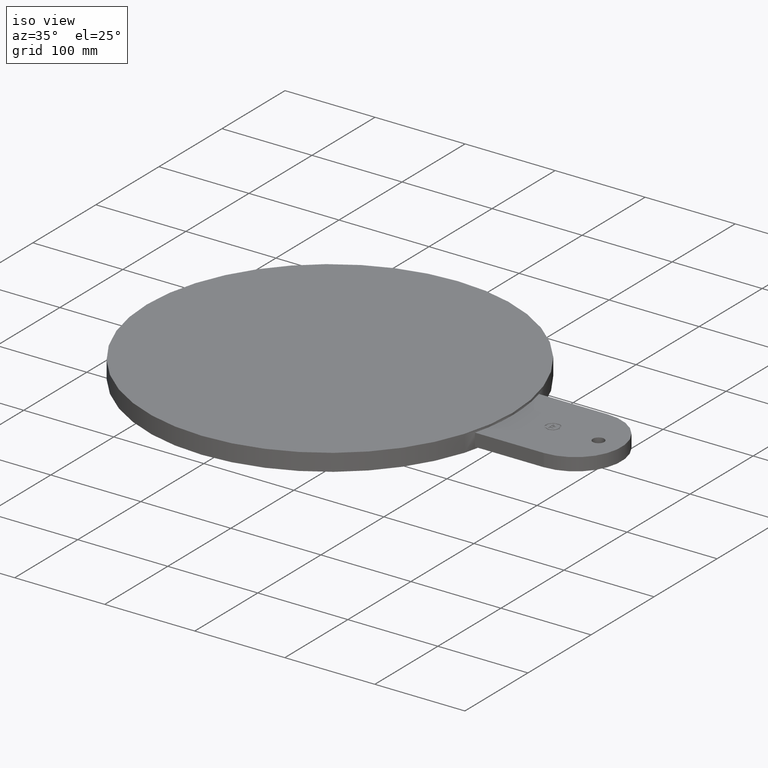
[diagram: clean part render]
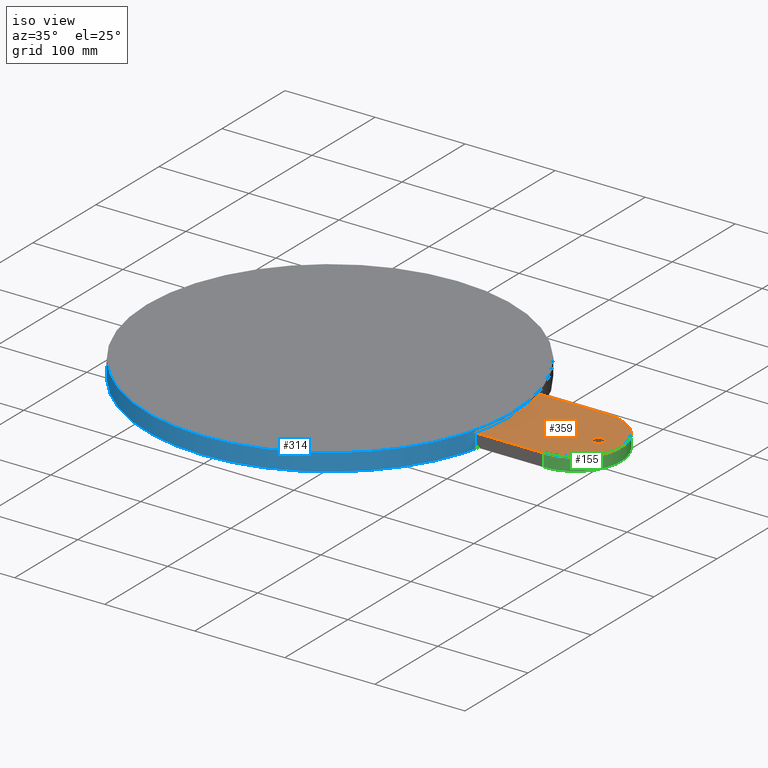
[diagram: same view with three faces highlighted in distinct colors, each labeled with its STEP entity id]
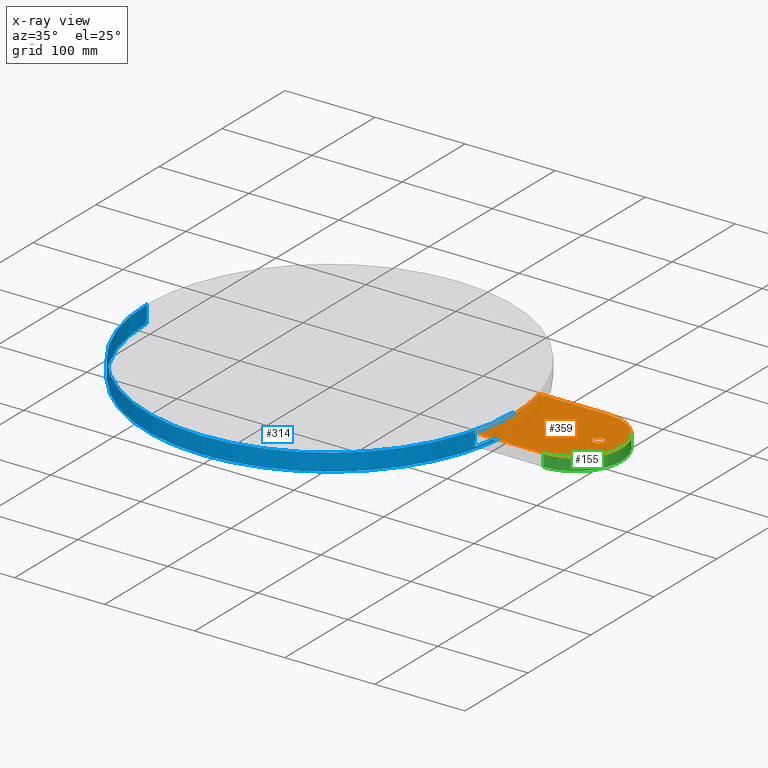
[diagram: x-ray of the same camera — body ghosted, the three highlighted faces saturated]
A machine part, iso view with three faces highlighted in distinct colors.
The next image is the same camera in x-ray (body ghosted, the three faces saturated) — at least one of them is partly hidden behind the body in this view.
Their STEP definitions:

[orange] entity #359 — the highlighted planar face has unit normal (0, 0, 1).
#146=AXIS2_PLACEMENT_3D('Circle Axis2P3D',#144,#145,$) ;
#187=AXIS2_PLACEMENT_3D('Circle Axis2P3D',#185,#186,$) ;
#213=AXIS2_PLACEMENT_3D('Circle Axis2P3D',#211,#212,$) ;
#280=AXIS2_PLACEMENT_3D('Circle Axis2P3D',#278,#279,$) ;
#301=AXIS2_PLACEMENT_3D('Circle Axis2P3D',#299,#300,$) ;
#328=AXIS2_PLACEMENT_3D('Plane Axis2P3D',#325,#326,#327) ;
#343=AXIS2_PLACEMENT_3D('Circle Axis2P3D',#341,#342,$) ;
#352=AXIS2_PLACEMENT_3D('Circle Axis2P3D',#350,#351,$) ;
#46=CARTESIAN_POINT('Vertex',(7.74596669245,-2.00000000001,0.281250000001)) ;
#60=CARTESIAN_POINT('Vertex',(10.7459666925,-2.00000000001,0.281250000001)) ;
#63=CARTESIAN_POINT('Line Origine',(9.24596669245,-2.00000000001,0.281250000001)) ;
#141=CARTESIAN_POINT('Vertex',(10.7459666925,2.00000000001,0.281250000001)) ;
#144=CARTESIAN_POINT('Axis2P3D Location',(10.7459666925,0.,0.281250000001)) ;
#165=CARTESIAN_POINT('Vertex',(7.74596669245,2.00000000001,0.281250000001)) ;
#168=CARTESIAN_POINT('Line Origine',(9.24596669245,2.00000000001,0.281250000001)) ;
#185=CARTESIAN_POINT('Axis2P3D Location',(11.7459666925,0.,0.281250000001)) ;
#189=CARTESIAN_POINT('Vertex',(11.4959666925,3.06161699788E-017,0.281250000001)) ;
#191=CARTESIAN_POINT('Vertex',(11.9959666925,0.,0.281250000001)) ;
#211=CARTESIAN_POINT('Axis2P3D Location',(11.7459666925,0.,0.281250000001)) ;
#275=CARTESIAN_POINT('Vertex',(8.00000000003,0.,0.281250000001)) ;
#278=CARTESIAN_POINT('Axis2P3D Location',(0.,0.,0.281250000001)) ;
#299=CARTESIAN_POINT('Axis2P3D Location',(0.,0.,0.281250000001)) ;
#325=CARTESIAN_POINT('Axis2P3D Location',(0.,0.,0.281250000001)) ;
#341=CARTESIAN_POINT('Axis2P3D Location',(9.74798334625,0.,0.281250000001)) ;
#345=CARTESIAN_POINT('Vertex',(9.74798334625,0.312499996876,0.281250000001)) ;
#347=CARTESIAN_POINT('Vertex',(9.74798334625,-0.312499996876,0.281250000001)) ;
#350=CARTESIAN_POINT('Axis2P3D Location',(9.74798334625,0.,0.281250000001)) ;
#64=DIRECTION('Vector Direction',(0.0393700787402,0.,0.)) ;
#145=DIRECTION('Axis2P3D Direction',(0.,0.,0.0393700787402)) ;
#169=DIRECTION('Vector Direction',(-0.0393700787402,0.,0.)) ;
#186=DIRECTION('Axis2P3D Direction',(0.,0.,0.0393700787402)) ;
#212=DIRECTION('Axis2P3D Direction',(0.,0.,0.0393700787402)) ;
#279=DIRECTION('Axis2P3D Direction',(0.,0.,0.0393700787402)) ;
#300=DIRECTION('Axis2P3D Direction',(0.,0.,0.0393700787402)) ;
#326=DIRECTION('Axis2P3D Direction',(0.,0.,0.0393700787402)) ;
#327=DIRECTION('Axis2P3D XDirection',(0.0393700787402,0.,0.)) ;
#342=DIRECTION('Axis2P3D Direction',(0.,0.,0.0393700787402)) ;
#351=DIRECTION('Axis2P3D Direction',(0.,0.,0.0393700787402)) ;
#65=VECTOR('Line Direction',#64,0.0393700787402) ;
#170=VECTOR('Line Direction',#169,0.0393700787402) ;
#331=ORIENTED_EDGE('',*,*,#67,.T.) ;
#332=ORIENTED_EDGE('',*,*,#148,.T.) ;
#333=ORIENTED_EDGE('',*,*,#172,.T.) ;
#334=ORIENTED_EDGE('',*,*,#282,.F.) ;
#335=ORIENTED_EDGE('',*,*,#303,.F.) ;
#338=ORIENTED_EDGE('',*,*,#193,.F.) ;
#339=ORIENTED_EDGE('',*,*,#215,.F.) ;
#356=ORIENTED_EDGE('',*,*,#349,.F.) ;
#357=ORIENTED_EDGE('',*,*,#354,.F.) ;
#340=FACE_BOUND('',#337,.T.) ;
#358=FACE_BOUND('',#355,.T.) ;
#359=ADVANCED_FACE('PartBody',(#336,#340,#358),#329,.T.) ;
#147=CIRCLE('generated circle',#146,2.00000000001) ;
#188=CIRCLE('generated circle',#187,0.250000000001) ;
#214=CIRCLE('generated circle',#213,0.250000000001) ;
#281=CIRCLE('generated circle',#280,8.00000000003) ;
#302=CIRCLE('generated circle',#301,8.00000000003) ;
#344=CIRCLE('generated circle',#343,0.312499996876) ;
#353=CIRCLE('generated circle',#352,0.312499996876) ;
#67=EDGE_CURVE('',#47,#61,#66,.T.) ;
#148=EDGE_CURVE('',#61,#142,#147,.T.) ;
#172=EDGE_CURVE('',#142,#166,#171,.T.) ;
#193=EDGE_CURVE('',#190,#192,#188,.T.) ;
#215=EDGE_CURVE('',#192,#190,#214,.T.) ;
#282=EDGE_CURVE('',#276,#166,#281,.T.) ;
#303=EDGE_CURVE('',#47,#276,#302,.T.) ;
#349=EDGE_CURVE('',#346,#348,#344,.T.) ;
#354=EDGE_CURVE('',#348,#346,#353,.T.) ;
#330=EDGE_LOOP('',(#331,#332,#333,#334,#335)) ;
#337=EDGE_LOOP('',(#338,#339)) ;
#355=EDGE_LOOP('',(#356,#357)) ;
#336=FACE_OUTER_BOUND('',#330,.T.) ;
#66=LINE('Line',#63,#65) ;
#171=LINE('Line',#168,#170) ;
#329=PLANE('',#328) ;
#47=VERTEX_POINT('',#46) ;
#61=VERTEX_POINT('',#60) ;
#142=VERTEX_POINT('',#141) ;
#166=VERTEX_POINT('',#165) ;
#190=VERTEX_POINT('',#189) ;
#192=VERTEX_POINT('',#191) ;
#276=VERTEX_POINT('',#275) ;
#346=VERTEX_POINT('',#345) ;
#348=VERTEX_POINT('',#347) ;

[blue] entity #314 — the highlighted cylindrical surface (partial cylindrical patch) has radius 203.2 mm, axis along (0, 0, 1).
#82=AXIS2_PLACEMENT_3D('Circle Axis2P3D',#80,#81,$) ;
#230=AXIS2_PLACEMENT_3D('Circle Axis2P3D',#228,#229,$) ;
#250=AXIS2_PLACEMENT_3D('Cylinder Axis2P3D',#247,#248,#249) ;
#296=AXIS2_PLACEMENT_3D('Circle Axis2P3D',#294,#295,$) ;
#301=AXIS2_PLACEMENT_3D('Circle Axis2P3D',#299,#300,$) ;
#40=CARTESIAN_POINT('Line Origine',(7.74596669245,-2.00000000001,0.)) ;
#44=CARTESIAN_POINT('Vertex',(7.74596669245,-2.00000000001,-0.281250000001)) ;
#46=CARTESIAN_POINT('Vertex',(7.74596669245,-2.00000000001,0.281250000001)) ;
#80=CARTESIAN_POINT('Axis2P3D Location',(-2.34982637023E-014,4.75560098737E-015,-0.281250000001)) ;
#84=CARTESIAN_POINT('Vertex',(8.00000000003,0.,-0.281250000001)) ;
#228=CARTESIAN_POINT('Axis2P3D Location',(0.,0.,-0.375000000001)) ;
#232=CARTESIAN_POINT('Vertex',(-8.00000000003,-2.57299623949E-015,-0.375000000001)) ;
#234=CARTESIAN_POINT('Vertex',(8.00000000003,0.,-0.375000000001)) ;
#247=CARTESIAN_POINT('Axis2P3D Location',(0.,0.,0.)) ;
#252=CARTESIAN_POINT('Line Origine',(8.00000000003,0.,0.)) ;
#257=CARTESIAN_POINT('Line Origine',(-8.00000000003,-2.57299623949E-015,0.)) ;
#261=CARTESIAN_POINT('Vertex',(-8.00000000003,-2.57299623949E-015,0.375000000001)) ;
#268=CARTESIAN_POINT('Vertex',(8.00000000003,0.,0.375000000001)) ;
#271=CARTESIAN_POINT('Line Origine',(8.00000000003,0.,0.)) ;
#275=CARTESIAN_POINT('Vertex',(8.00000000003,0.,0.281250000001)) ;
#294=CARTESIAN_POINT('Axis2P3D Location',(0.,0.,0.375000000001)) ;
#299=CARTESIAN_POINT('Axis2P3D Location',(0.,0.,0.281250000001)) ;
#41=DIRECTION('Vector Direction',(0.,0.,0.0393700787402)) ;
#81=DIRECTION('Axis2P3D Direction',(0.,0.,0.0393700787402)) ;
#229=DIRECTION('Axis2P3D Direction',(0.,0.,0.0393700787402)) ;
#248=DIRECTION('Axis2P3D Direction',(0.,0.,0.0393700787402)) ;
#249=DIRECTION('Axis2P3D XDirection',(-0.0393700787402,-1.26623830683E-017,-0.)) ;
#253=DIRECTION('Vector Direction',(0.,0.,0.0393700787402)) ;
#258=DIRECTION('Vector Direction',(0.,0.,0.0393700787402)) ;
#272=DIRECTION('Vector Direction',(0.,0.,0.0393700787402)) ;
#295=DIRECTION('Axis2P3D Direction',(0.,0.,0.0393700787402)) ;
#300=DIRECTION('Axis2P3D Direction',(0.,0.,0.0393700787402)) ;
#42=VECTOR('Line Direction',#41,0.0393700787402) ;
#254=VECTOR('Line Direction',#253,0.0393700787402) ;
#259=VECTOR('Line Direction',#258,0.0393700787402) ;
#273=VECTOR('Line Direction',#272,0.0393700787402) ;
#305=ORIENTED_EDGE('',*,*,#277,.T.) ;
#306=ORIENTED_EDGE('',*,*,#298,.F.) ;
#307=ORIENTED_EDGE('',*,*,#263,.F.) ;
#308=ORIENTED_EDGE('',*,*,#236,.T.) ;
#309=ORIENTED_EDGE('',*,*,#256,.T.) ;
#310=ORIENTED_EDGE('',*,*,#86,.F.) ;
#311=ORIENTED_EDGE('',*,*,#48,.T.) ;
#312=ORIENTED_EDGE('',*,*,#303,.T.) ;
#314=ADVANCED_FACE('PartBody',(#313),#251,.T.) ;
#83=CIRCLE('generated circle',#82,8.00000000003) ;
#231=CIRCLE('generated circle',#230,8.00000000003) ;
#297=CIRCLE('generated circle',#296,8.00000000003) ;
#302=CIRCLE('generated circle',#301,8.00000000003) ;
#251=CYLINDRICAL_SURFACE('generated cylinder',#250,8.00000000003) ;
#48=EDGE_CURVE('',#45,#47,#43,.T.) ;
#86=EDGE_CURVE('',#45,#85,#83,.T.) ;
#236=EDGE_CURVE('',#233,#235,#231,.T.) ;
#256=EDGE_CURVE('',#235,#85,#255,.T.) ;
#263=EDGE_CURVE('',#233,#262,#260,.T.) ;
#277=EDGE_CURVE('',#276,#269,#274,.T.) ;
#298=EDGE_CURVE('',#262,#269,#297,.T.) ;
#303=EDGE_CURVE('',#47,#276,#302,.T.) ;
#304=EDGE_LOOP('',(#305,#306,#307,#308,#309,#310,#311,#312)) ;
#313=FACE_OUTER_BOUND('',#304,.T.) ;
#43=LINE('Line',#40,#42) ;
#255=LINE('Line',#252,#254) ;
#260=LINE('Line',#257,#259) ;
#274=LINE('Line',#271,#273) ;
#45=VERTEX_POINT('',#44) ;
#47=VERTEX_POINT('',#46) ;
#85=VERTEX_POINT('',#84) ;
#233=VERTEX_POINT('',#232) ;
#235=VERTEX_POINT('',#234) ;
#262=VERTEX_POINT('',#261) ;
#269=VERTEX_POINT('',#268) ;
#276=VERTEX_POINT('',#275) ;

[green] entity #155 — the highlighted cylindrical surface (partial cylindrical patch) has radius 50.8 mm, axis along (0, 0, 1).
#103=AXIS2_PLACEMENT_3D('Circle Axis2P3D',#101,#102,$) ;
#135=AXIS2_PLACEMENT_3D('Cylinder Axis2P3D',#132,#133,#134) ;
#146=AXIS2_PLACEMENT_3D('Circle Axis2P3D',#144,#145,$) ;
#53=CARTESIAN_POINT('Vertex',(10.7459666925,-2.00000000001,-0.281250000001)) ;
#56=CARTESIAN_POINT('Line Origine',(10.7459666925,-2.00000000001,0.)) ;
#60=CARTESIAN_POINT('Vertex',(10.7459666925,-2.00000000001,0.281250000001)) ;
#98=CARTESIAN_POINT('Vertex',(10.7459666925,2.00000000001,-0.281250000001)) ;
#101=CARTESIAN_POINT('Axis2P3D Location',(10.7459666925,0.,-0.281250000001)) ;
#132=CARTESIAN_POINT('Axis2P3D Location',(10.7459666925,0.,0.)) ;
#137=CARTESIAN_POINT('Line Origine',(10.7459666925,2.00000000001,0.)) ;
#141=CARTESIAN_POINT('Vertex',(10.7459666925,2.00000000001,0.281250000001)) ;
#144=CARTESIAN_POINT('Axis2P3D Location',(10.7459666925,0.,0.281250000001)) ;
#57=DIRECTION('Vector Direction',(0.,0.,0.0393700787402)) ;
#102=DIRECTION('Axis2P3D Direction',(0.,0.,0.0393700787402)) ;
#133=DIRECTION('Axis2P3D Direction',(0.,0.,0.0393700787402)) ;
#134=DIRECTION('Axis2P3D XDirection',(-7.2321661367E-018,-0.0393700787402,-0.)) ;
#138=DIRECTION('Vector Direction',(0.,0.,0.0393700787402)) ;
#145=DIRECTION('Axis2P3D Direction',(0.,0.,0.0393700787402)) ;
#58=VECTOR('Line Direction',#57,0.0393700787402) ;
#139=VECTOR('Line Direction',#138,0.0393700787402) ;
#150=ORIENTED_EDGE('',*,*,#62,.F.) ;
#151=ORIENTED_EDGE('',*,*,#105,.T.) ;
#152=ORIENTED_EDGE('',*,*,#143,.T.) ;
#153=ORIENTED_EDGE('',*,*,#148,.F.) ;
#155=ADVANCED_FACE('PartBody',(#154),#136,.T.) ;
#104=CIRCLE('generated circle',#103,2.00000000001) ;
#147=CIRCLE('generated circle',#146,2.00000000001) ;
#136=CYLINDRICAL_SURFACE('generated cylinder',#135,2.00000000001) ;
#62=EDGE_CURVE('',#54,#61,#59,.T.) ;
#105=EDGE_CURVE('',#54,#99,#104,.T.) ;
#143=EDGE_CURVE('',#99,#142,#140,.T.) ;
#148=EDGE_CURVE('',#61,#142,#147,.T.) ;
#149=EDGE_LOOP('',(#150,#151,#152,#153)) ;
#154=FACE_OUTER_BOUND('',#149,.T.) ;
#59=LINE('Line',#56,#58) ;
#140=LINE('Line',#137,#139) ;
#54=VERTEX_POINT('',#53) ;
#61=VERTEX_POINT('',#60) ;
#99=VERTEX_POINT('',#98) ;
#142=VERTEX_POINT('',#141) ;